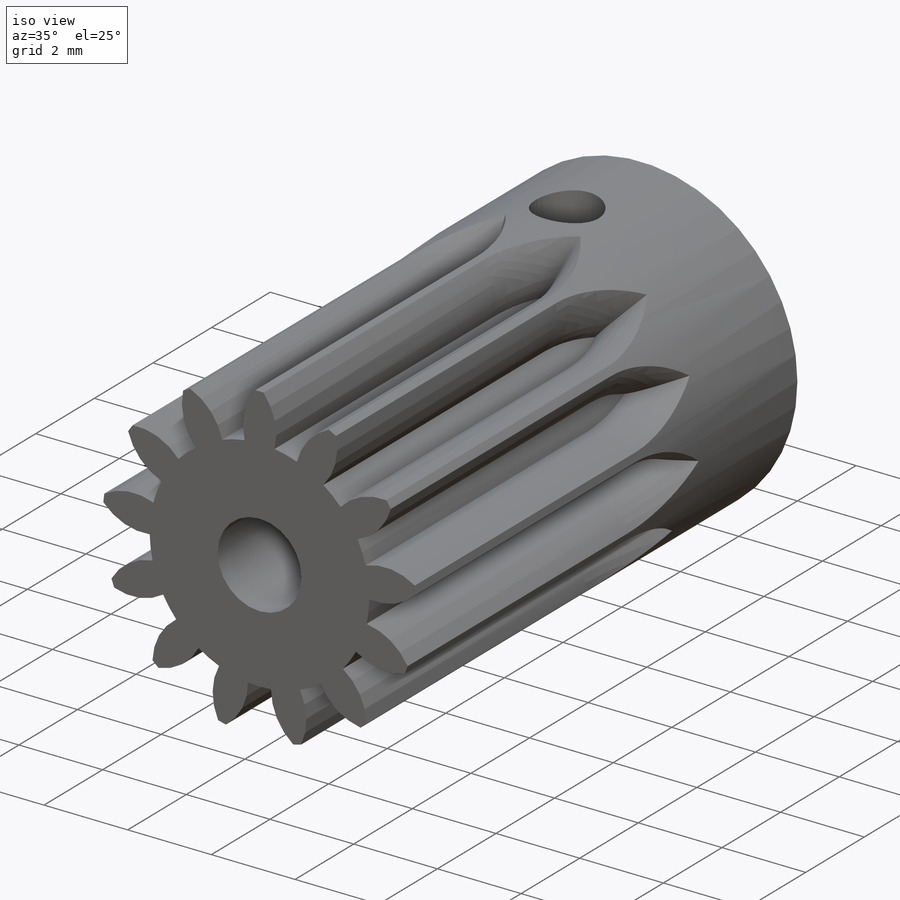
[diagram: iso view]
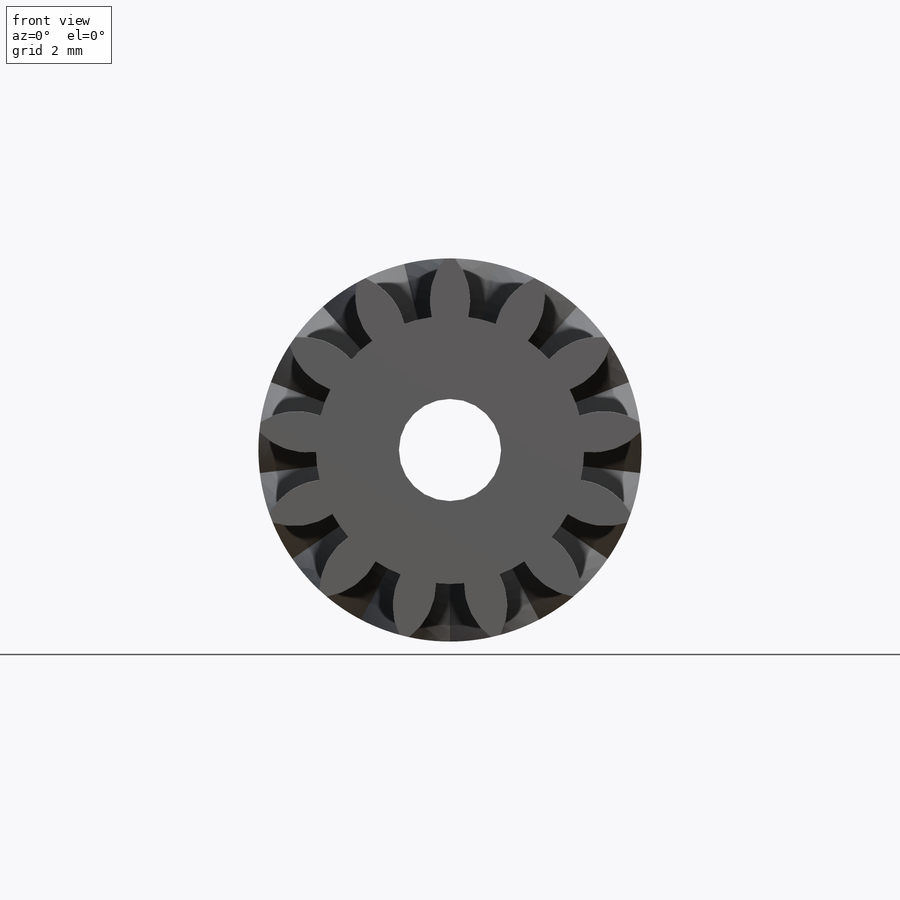
[diagram: front view]
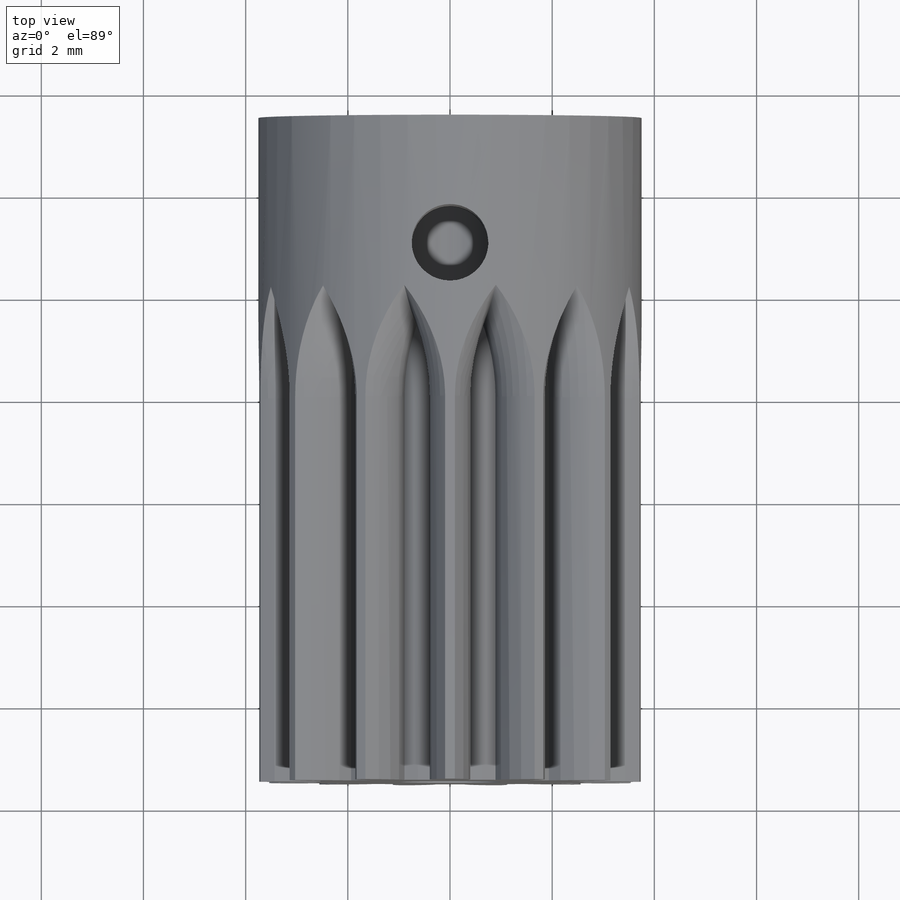
[diagram: top view]
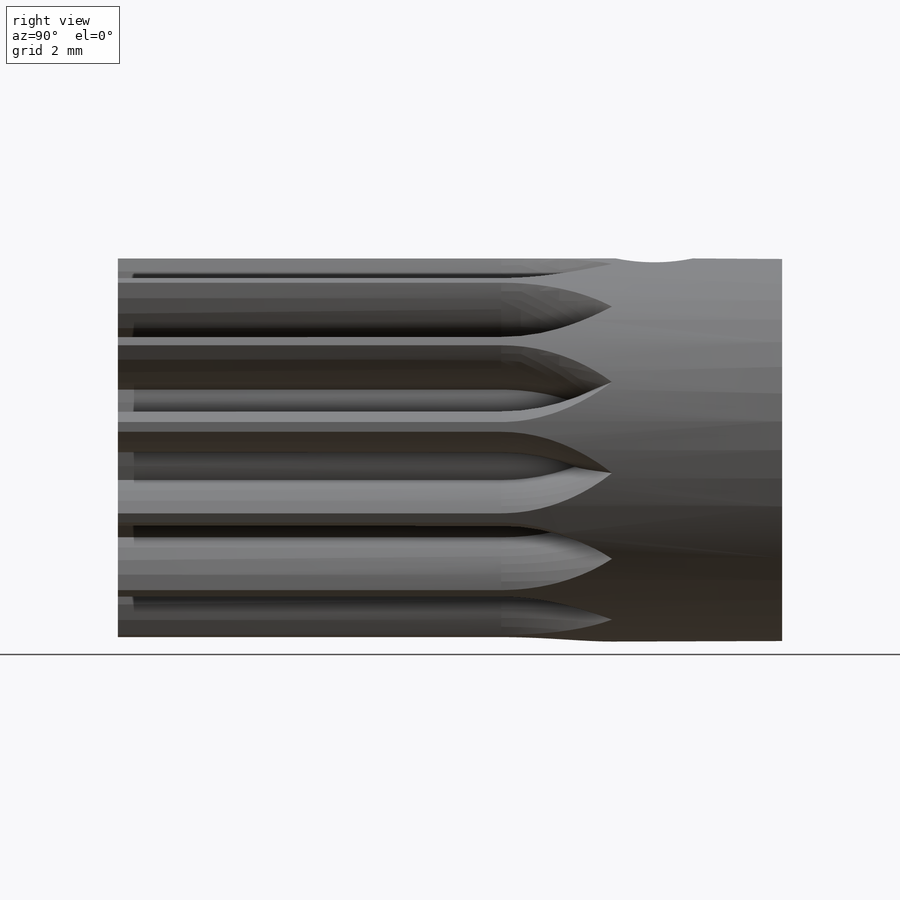
[diagram: right view]
SOLIDWORKS PART (.sldprt)
format: sldprt  version: not decoded by parser v0  size: 658,432 bytes
history: native  units: mm
features: plane x7, sketch x4, extrude x2, cut_extrude x2, material x1, move_body x1, fillet x1 + 4 further entries (+14 scaffold rows collapsed; 3 parser-record rows omitted)
feature tree (39):
  scaffold x14  (default folders/planes/origin — collapsed)
  material  "Material <nicht festgelegt>"
  plane  "Ebene vorne"
  plane  "Ebene oben"
  plane  "Ebene rechts"
  plane  "Plane1-DIN - Spur gear 0.5M 13T 20PA 5FW ---S13A75H50L2N"
  plane  "Plane2-DIN - Spur gear 0.5M 13T 20PA 5FW ---S13A75H50L2N"
  plane  "Plane3-DIN - Spur gear 0.5M 13T 20PA 5FW ---S13A75H50L2N"
  plane  "FarPln-DIN - Spur gear 0.5M 13T 20PA 5FW ---S13A75H50L2N"
  "DIN - Spur gear 0.5M 13T 20PA 5FW ---S13A75H50L2N"
  parser-record x3  (decoder bookkeeping rows leaked as tree rows — omitted from the tree; the rows remain in map.json)
  move_body  "Körper-Verschieben/Kopieren2"
  "Deckungsgleich1"
  "Deckungsgleich2"
  "Deckungsgleich3"
  sketch  "Skizze1"  dims[D1=7.5mm]
  extrude  "Aufsatz-Linear austragen1"  Depth=3mm
  fillet  "Verrundung9"  Radius=4mm
  sketch  "Skizze3"  dims[D1=0.0mm]
  extrude  "Aufsatz-Linear austragen2"  Depth=3mm
  sketch  "Skizze4"  dims[D1=20.0mm D2=7.5mm D3=13.0mm]
  cut_extrude  "Schnitt-Linear austragen2"  [1 undecoded]
  sketch  "Skizze2"  dims[D1=1.5mm D2=2.5mm]
  cut_extrude  "Schnitt-Linear austragen1"  [1 undecoded]
decode coverage: 7 of 10 modeling features carry decoded parameters; 4 rows unclassified (native names shown)
note: 2 parameter values undecoded
note: suppression state not decoded; provenance and decode notes live in map.json
